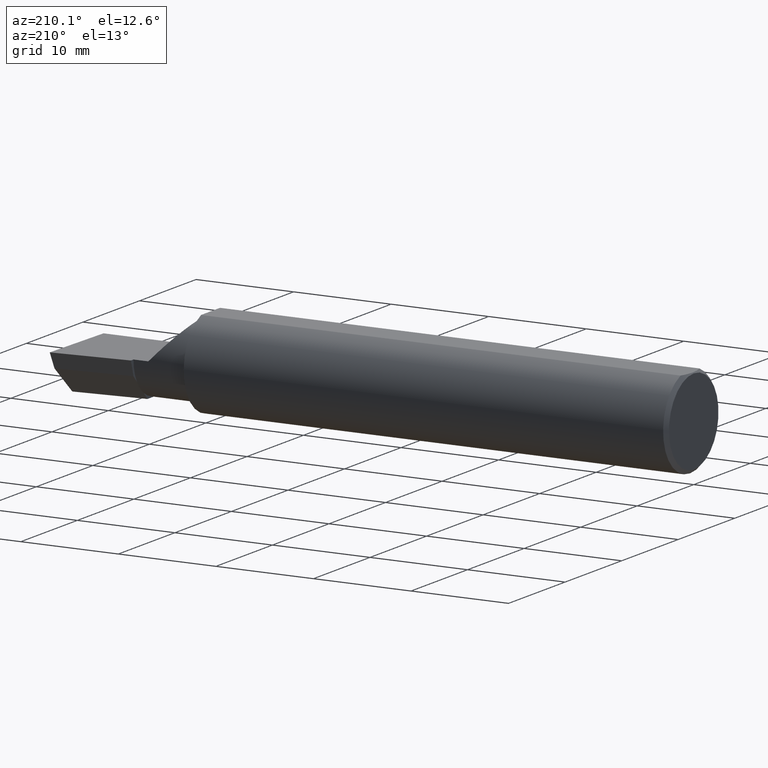
[diagram: clean part render]
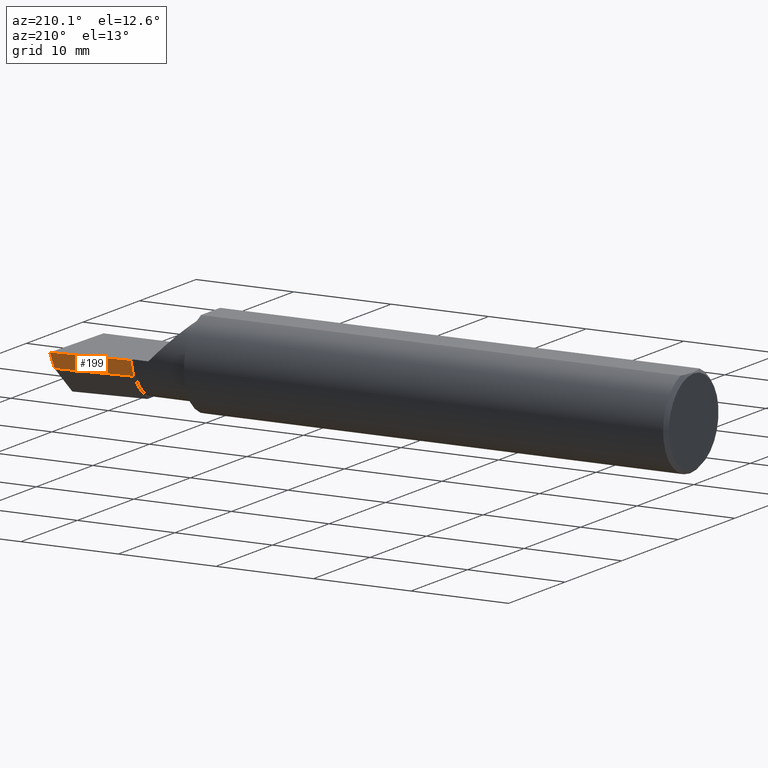
[diagram: same view with one face highlighted and labeled with its STEP entity id]
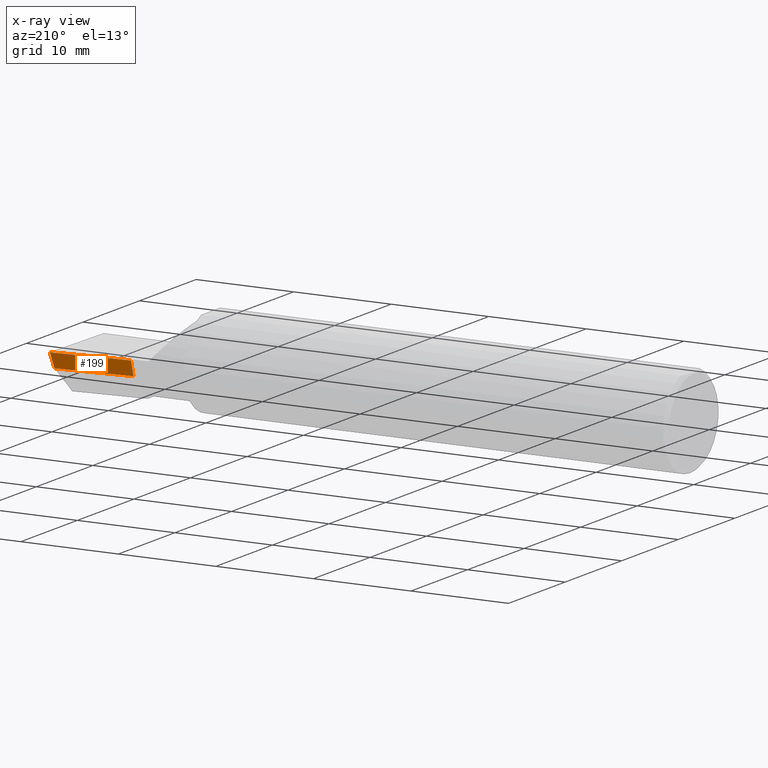
[diagram: x-ray of the same camera — body ghosted, the highlighted face saturated]
A machine part, auxiliary view. The second image highlights one B-rep face of the part: STEP entity #199.
The next image is the same camera in x-ray: the body ghosted, the highlighted face saturated — about 0% of this face is hidden behind the body in this view.
In plain terms, the highlighted planar face has unit normal (-0.0917, 0.9519, -0.2924).
Its self-contained STEP definition (entity closure, byte-faithful):
#19 = VERTEX_POINT ( 'NONE', #82 ) ;
#36 = AXIS2_PLACEMENT_3D ( 'NONE', #48, #234, #291 ) ;
#48 = CARTESIAN_POINT ( 'NONE',  ( 2.509953961983671267, 0.1716084575252020683, -6.829619984160658046E-17 ) ) ;
#52 = FACE_OUTER_BOUND ( 'NONE', #151, .T. ) ;
#65 = LINE ( 'NONE', #400, #383 ) ;
#81 = CARTESIAN_POINT ( 'NONE',  ( 2.190000000000000391, 0.1408003950587675135, 3.244069492476312449E-16 ) ) ;
#82 = CARTESIAN_POINT ( 'NONE',  ( 2.492127980275578469, 0.1514633278254541304, -0.05999999999999999084 ) ) ;
#88 = EDGE_CURVE ( 'NONE', #19, #196, #607, .T. ) ;
#91 = VECTOR ( 'NONE', #294, 39.37007874015748143 ) ;
#93 = ORIENTED_EDGE ( 'NONE', *, *, #348, .T. ) ;
#143 = ORIENTED_EDGE ( 'NONE', *, *, #88, .F. ) ;
#150 = CARTESIAN_POINT ( 'NONE',  ( 2.500000000000033307, 0.1706500000000319150, 9.332649030152475688E-14 ) ) ;
#151 = EDGE_LOOP ( 'NONE', ( #143, #537, #287, #93 ) ) ;
#196 = VERTEX_POINT ( 'NONE', #150 ) ;
#199 = ADVANCED_FACE ( 'NONE', ( #52 ), #245, .T. ) ;
#230 = LINE ( 'NONE', #616, #240 ) ;
#234 = DIRECTION ( 'NONE',  ( -0.09165774897393340337, 0.9519021185660613282, -0.2923717047227306631 ) ) ;
#240 = VECTOR ( 'NONE', #332, 39.37007874015748854 ) ;
#245 = PLANE ( 'NONE',  #36 ) ;
#287 = ORIENTED_EDGE ( 'NONE', *, *, #308, .F. ) ;
#291 = DIRECTION ( 'NONE',  ( 0.000000000000000000, 0.2936076258024064023, 0.9559260233253795702 ) ) ;
#294 = DIRECTION ( 'NONE',  ( 0.9953961983671787417, 0.09584575252022464742, -1.028972571603813720E-16 ) ) ;
#308 = EDGE_CURVE ( 'NONE', #498, #334, #65, .T. ) ;
#329 = VECTOR ( 'NONE', #565, 39.37007874015748854 ) ;
#332 = DIRECTION ( 'NONE',  ( -0.9953961983671800740, -0.09584575252021031166, 0.000000000000000000 ) ) ;
#334 = VERTEX_POINT ( 'NONE', #491 ) ;
#348 = EDGE_CURVE ( 'NONE', #498, #196, #454, .T. ) ;
#383 = VECTOR ( 'NONE', #544, 39.37007874015748854 ) ;
#400 = CARTESIAN_POINT ( 'NONE',  ( 2.190000000000000391, 0.1375075152821363944, -0.01072093908174519966 ) ) ;
#413 = CARTESIAN_POINT ( 'NONE',  ( 2.500188977433833060, 0.1711105994646693607, 0.001440373173035025328 ) ) ;
#454 = LINE ( 'NONE', #494, #91 ) ;
#491 = CARTESIAN_POINT ( 'NONE',  ( 2.190000000000000391, 0.1223717121708782218, -0.05999999999999999778 ) ) ;
#494 = CARTESIAN_POINT ( 'NONE',  ( 0.3393181374772709646, -0.03739999999999999575, 2.916527262322781592E-16 ) ) ;
#498 = VERTEX_POINT ( 'NONE', #81 ) ;
#537 = ORIENTED_EDGE ( 'NONE', *, *, #610, .T. ) ;
#544 = DIRECTION ( 'NONE',  ( -2.005228508682078977E-18, -0.2936076258024064023, -0.9559260233253794592 ) ) ;
#565 = DIRECTION ( 'NONE',  ( 0.1240019227989970080, 0.3022330132596679486, 0.9451342385281219505 ) ) ;
#607 = LINE ( 'NONE', #413, #329 ) ;
#610 = EDGE_CURVE ( 'NONE', #19, #334, #230, .T. ) ;
#616 = CARTESIAN_POINT ( 'NONE',  ( 2.511712141217646632, 0.1533490680423130470, -0.05999999999999999084 ) ) ;